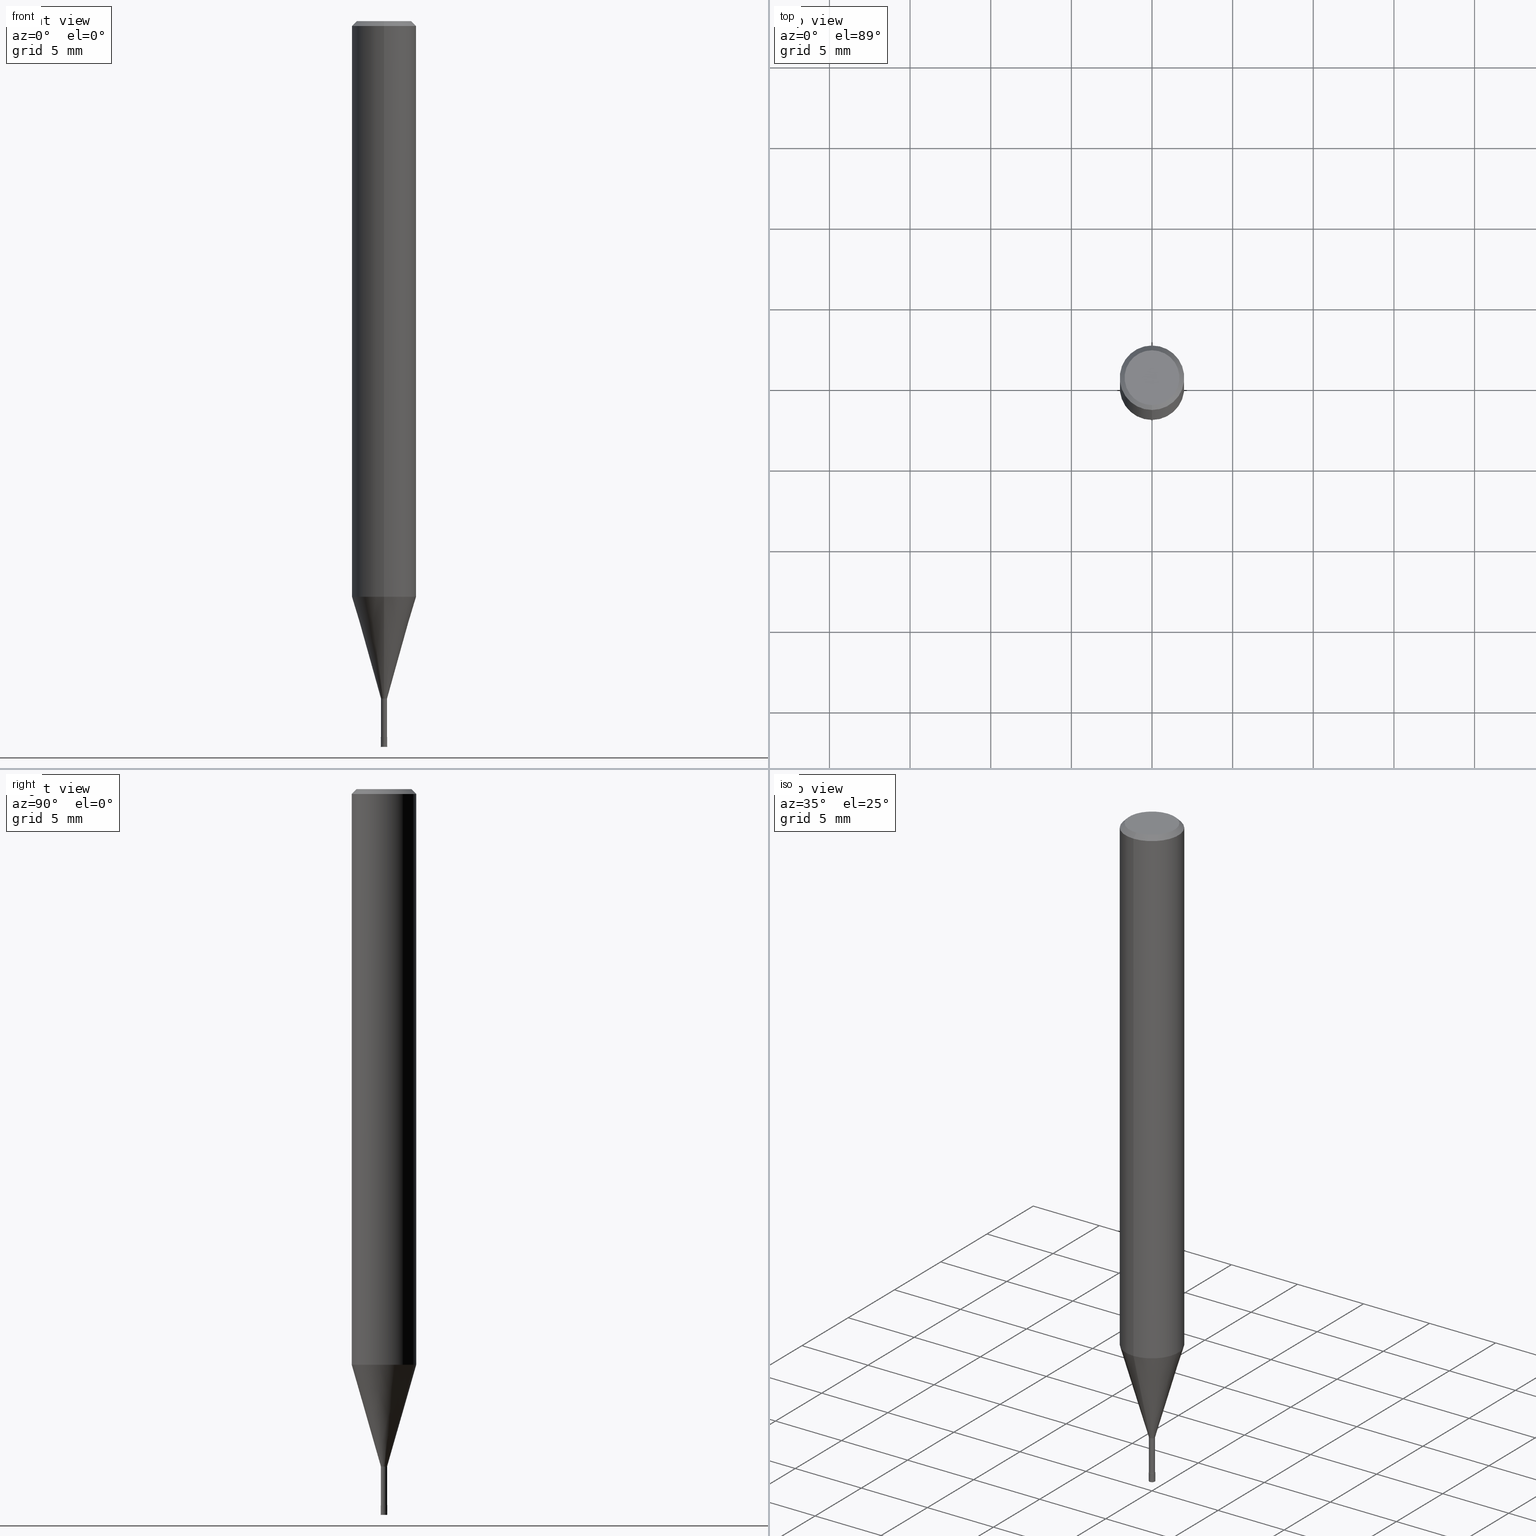
[diagram: canonical four-view strip — front | top / right | iso, engineering-drawing reading convention]
A machine part, canonical four-view strip (front | top / right | iso — engineering-drawing reading convention). The complete STEP part file that produces these views, byte-faithful:
ISO-10303-21;
HEADER;
FILE_DESCRIPTION(('no description'),'unknown implementation level');
FILE_NAME('HLS2004-030-Huellk.stp','  ',('CIMSOURCE GmbH'),('CADClick - KiM GmbH - www.kimweb.de'),'unknown preprocess','ACIS','unknown authorization');
FILE_SCHEMA(('automotive_design'));
ENDSEC;
DATA;
#1=MECHANICAL_DESIGN_GEOMETRIC_PRESENTATION_REPRESENTATION(' ',(#14,#15,#16,#17,#18,#19,#20,#21,#22,#23,#24,#25,#26,#27,#28,#29,#30,#31,#32,#33,#34,#35,#36,#37,#38,#39,#40,#41,#42,#43,#44,#45,#46,#47,#48,#49,#50,#51,#52,#53,#54,#55,#56,#57,#58,#59,#60,#61,#62,#63,#64,#65,#66,#67,#68,#69,#70,#71,#72),#10);
#2=PRODUCT_DEFINITION_CONTEXT('',#73,'design');
#3=APPLICATION_PROTOCOL_DEFINITION('INTERNATIONAL STANDARD','automotive_design',1994,#73);
#4=PRODUCT_CATEGORY_RELATIONSHIP('NONE','NONE',#74,#75);
#5=SHAPE_DEFINITION_REPRESENTATION(#76,#77);
#6=PRODUCT_DEFINITION_CONTEXT('',#78,'design');
#7=APPLICATION_PROTOCOL_DEFINITION('INTERNATIONAL STANDARD','automotive_design',1994,#78);
#8=PRODUCT_CATEGORY_RELATIONSHIP('NONE','NONE',#79,#80);
#9=SHAPE_DEFINITION_REPRESENTATION(#81,#82);
#10= (GEOMETRIC_REPRESENTATION_CONTEXT(3)GLOBAL_UNCERTAINTY_ASSIGNED_CONTEXT((#85))GLOBAL_UNIT_ASSIGNED_CONTEXT((#87,#88,#89))REPRESENTATION_CONTEXT('NONE','WORKSPACE'));
#14=STYLED_ITEM('',(#91),#92);
#15=STYLED_ITEM('',(#93),#94);
#16=STYLED_ITEM('',(#95),#96);
#17=STYLED_ITEM('',(#97),#98);
#18=STYLED_ITEM('',(#99),#100);
#19=STYLED_ITEM('',(#101),#102);
#20=STYLED_ITEM('',(#103),#104);
#21=STYLED_ITEM('',(#105),#106);
#22=STYLED_ITEM('',(#107),#108);
#23=STYLED_ITEM('',(#109),#110);
#24=STYLED_ITEM('',(#111),#112);
#25=STYLED_ITEM('',(#113),#114);
#26=STYLED_ITEM('',(#115),#116);
#27=STYLED_ITEM('',(#117),#118);
#28=STYLED_ITEM('',(#119),#120);
#29=STYLED_ITEM('',(#121),#122);
#30=STYLED_ITEM('',(#123),#124);
#31=STYLED_ITEM('',(#125),#126);
#32=STYLED_ITEM('',(#127),#128);
#33=STYLED_ITEM('',(#129),#130);
#34=STYLED_ITEM('',(#131),#132);
#35=STYLED_ITEM('',(#133),#134);
#36=STYLED_ITEM('',(#135),#136);
#37=STYLED_ITEM('',(#137),#138);
#38=STYLED_ITEM('',(#139),#140);
#39=STYLED_ITEM('',(#141),#142);
#40=STYLED_ITEM('',(#143),#144);
#41=STYLED_ITEM('',(#145),#146);
#42=STYLED_ITEM('',(#147),#148);
#43=STYLED_ITEM('',(#149),#150);
#44=STYLED_ITEM('',(#151),#152);
#45=STYLED_ITEM('',(#153),#154);
#46=STYLED_ITEM('',(#155),#156);
#47=STYLED_ITEM('',(#157),#158);
#48=STYLED_ITEM('',(#159),#160);
#49=STYLED_ITEM('',(#161),#162);
#50=STYLED_ITEM('',(#163),#164);
#51=STYLED_ITEM('',(#165),#166);
#52=STYLED_ITEM('',(#167),#168);
#53=STYLED_ITEM('',(#169),#170);
#54=STYLED_ITEM('',(#171),#172);
#55=STYLED_ITEM('',(#173),#174);
#56=STYLED_ITEM('',(#175),#176);
#57=STYLED_ITEM('',(#177),#178);
#58=STYLED_ITEM('',(#179),#180);
#59=STYLED_ITEM('',(#181),#182);
#60=STYLED_ITEM('',(#183),#184);
#61=STYLED_ITEM('',(#185),#186);
#62=STYLED_ITEM('',(#187),#188);
#63=STYLED_ITEM('',(#189),#190);
#64=STYLED_ITEM('',(#191),#192);
#65=STYLED_ITEM('',(#193),#194);
#66=STYLED_ITEM('',(#195),#196);
#67=STYLED_ITEM('',(#197),#198);
#68=STYLED_ITEM('',(#199),#200);
#69=STYLED_ITEM('',(#201),#202);
#70=STYLED_ITEM('',(#203),#204);
#71=STYLED_ITEM('',(#205),#206);
#72=STYLED_ITEM('',(#207),#208);
#73=APPLICATION_CONTEXT(' ');
#74=PRODUCT_CATEGORY('part','NONE');
#75=PRODUCT_RELATED_PRODUCT_CATEGORY('detail',' ',(#209));
#76=PRODUCT_DEFINITION_SHAPE('NONE','NONE',#210);
#77=ADVANCED_BREP_SHAPE_REPRESENTATION('1',(#186,#211),#10);
#78=APPLICATION_CONTEXT(' ');
#79=PRODUCT_CATEGORY('part','NONE');
#80=PRODUCT_RELATED_PRODUCT_CATEGORY('detail',' ',(#212));
#81=PRODUCT_DEFINITION_SHAPE('NONE','NONE',#213);
#82=ADVANCED_BREP_SHAPE_REPRESENTATION('2',(#188,#214),#10);
#85=UNCERTAINTY_MEASURE_WITH_UNIT(LENGTH_MEASURE(1.0E-006),#87,'','');
#87= (CONVERSION_BASED_UNIT('MILLIMETRE',#217)LENGTH_UNIT()NAMED_UNIT(#220));
#88= (NAMED_UNIT(#222)PLANE_ANGLE_UNIT()SI_UNIT($,.RADIAN.));
#89= (NAMED_UNIT(#222)SOLID_ANGLE_UNIT()SI_UNIT($,.STERADIAN.));
#91=PRESENTATION_STYLE_ASSIGNMENT((#228));
#92=ADVANCED_FACE('',(#229),#230,.T.);
#93=PRESENTATION_STYLE_ASSIGNMENT((#231));
#94=EDGE_CURVE('',#196,#180,#232,.T.);
#95=PRESENTATION_STYLE_ASSIGNMENT((#233));
#96=EDGE_CURVE('',#182,#138,#234,.T.);
#97=PRESENTATION_STYLE_ASSIGNMENT((#235));
#98=EDGE_CURVE('',#118,#196,#236,.T.);
#99=PRESENTATION_STYLE_ASSIGNMENT((#237));
#100=ADVANCED_FACE('',(#238),#239,.T.);
#101=PRESENTATION_STYLE_ASSIGNMENT((#240));
#102=EDGE_CURVE('',#108,#148,#241,.T.);
#103=PRESENTATION_STYLE_ASSIGNMENT((#242));
#104=VERTEX_POINT('',#243);
#105=PRESENTATION_STYLE_ASSIGNMENT((#244));
#106=EDGE_CURVE('',#116,#132,#245,.T.);
#107=PRESENTATION_STYLE_ASSIGNMENT((#246));
#108=VERTEX_POINT('',#247);
#109=PRESENTATION_STYLE_ASSIGNMENT((#248));
#110=EDGE_CURVE('',#104,#118,#249,.T.);
#111=PRESENTATION_STYLE_ASSIGNMENT((#250));
#112=EDGE_CURVE('',#134,#132,#251,.T.);
#113=PRESENTATION_STYLE_ASSIGNMENT((#252));
#114=EDGE_CURVE('',#140,#172,#253,.T.);
#115=PRESENTATION_STYLE_ASSIGNMENT((#254));
#116=VERTEX_POINT('',#255);
#117=PRESENTATION_STYLE_ASSIGNMENT((#256));
#118=VERTEX_POINT('',#257);
#119=PRESENTATION_STYLE_ASSIGNMENT((#258));
#120=VERTEX_POINT('',#259);
#121=PRESENTATION_STYLE_ASSIGNMENT((#260));
#122=EDGE_CURVE('',#202,#156,#261,.T.);
#123=PRESENTATION_STYLE_ASSIGNMENT((#262));
#124=EDGE_CURVE('',#118,#104,#263,.T.);
#125=PRESENTATION_STYLE_ASSIGNMENT((#264));
#126=EDGE_CURVE('',#120,#108,#265,.T.);
#127=PRESENTATION_STYLE_ASSIGNMENT((#266));
#128=ADVANCED_FACE('',(#267),#268,.T.);
#129=PRESENTATION_STYLE_ASSIGNMENT((#269));
#130=EDGE_CURVE('',#148,#108,#270,.T.);
#131=PRESENTATION_STYLE_ASSIGNMENT((#271));
#132=VERTEX_POINT('',#272);
#133=PRESENTATION_STYLE_ASSIGNMENT((#273));
#134=VERTEX_POINT('',#274);
#135=PRESENTATION_STYLE_ASSIGNMENT((#275));
#136=ADVANCED_FACE('',(#276),#277,.T.);
#137=PRESENTATION_STYLE_ASSIGNMENT((#278));
#138=VERTEX_POINT('',#279);
#139=PRESENTATION_STYLE_ASSIGNMENT((#280));
#140=VERTEX_POINT('',#281);
#141=PRESENTATION_STYLE_ASSIGNMENT((#282));
#142=ADVANCED_FACE('',(#283),#284,.T.);
#143=PRESENTATION_STYLE_ASSIGNMENT((#285));
#144=ADVANCED_FACE('',(#286),#287,.T.);
#145=PRESENTATION_STYLE_ASSIGNMENT((#288));
#146=ADVANCED_FACE('',(#289),#290,.T.);
#147=PRESENTATION_STYLE_ASSIGNMENT((#291));
#148=VERTEX_POINT('',#292);
#149=PRESENTATION_STYLE_ASSIGNMENT((#293));
#150=ADVANCED_FACE('',(#294),#295,.T.);
#151=PRESENTATION_STYLE_ASSIGNMENT((#296));
#152=ADVANCED_FACE('',(#297),#298,.T.);
#153=PRESENTATION_STYLE_ASSIGNMENT((#299));
#154=EDGE_CURVE('',#116,#120,#300,.T.);
#155=PRESENTATION_STYLE_ASSIGNMENT((#301));
#156=VERTEX_POINT('',#302);
#157=PRESENTATION_STYLE_ASSIGNMENT((#303));
#158=EDGE_CURVE('',#156,#202,#304,.T.);
#159=PRESENTATION_STYLE_ASSIGNMENT((#305));
#160=ADVANCED_FACE('',(#306),#307,.T.);
#161=PRESENTATION_STYLE_ASSIGNMENT((#308));
#162=EDGE_CURVE('',#148,#134,#309,.T.);
#163=PRESENTATION_STYLE_ASSIGNMENT((#310));
#164=EDGE_CURVE('',#172,#202,#311,.T.);
#165=PRESENTATION_STYLE_ASSIGNMENT((#312));
#166=EDGE_CURVE('',#132,#116,#313,.T.);
#167=PRESENTATION_STYLE_ASSIGNMENT((#314));
#168=EDGE_CURVE('',#180,#196,#315,.T.);
#169=PRESENTATION_STYLE_ASSIGNMENT((#316));
#170=ADVANCED_FACE('',(#317),#318,.T.);
#171=PRESENTATION_STYLE_ASSIGNMENT((#319));
#172=VERTEX_POINT('',#320);
#173=PRESENTATION_STYLE_ASSIGNMENT((#321));
#174=EDGE_CURVE('',#182,#172,#322,.T.);
#175=PRESENTATION_STYLE_ASSIGNMENT((#323));
#176=EDGE_CURVE('',#140,#138,#324,.T.);
#177=PRESENTATION_STYLE_ASSIGNMENT((#325));
#178=ADVANCED_FACE('',(#326),#327,.T.);
#179=PRESENTATION_STYLE_ASSIGNMENT((#328));
#180=VERTEX_POINT('',#329);
#181=PRESENTATION_STYLE_ASSIGNMENT((#330));
#182=VERTEX_POINT('',#331);
#183=PRESENTATION_STYLE_ASSIGNMENT((#332));
#184=ADVANCED_FACE('',(#333,#334),#335,.T.);
#185=PRESENTATION_STYLE_ASSIGNMENT((#336));
#186=MANIFOLD_SOLID_BREP('1',#337);
#187=PRESENTATION_STYLE_ASSIGNMENT((#338));
#188=MANIFOLD_SOLID_BREP('2',#339);
#189=PRESENTATION_STYLE_ASSIGNMENT((#340));
#190=EDGE_CURVE('',#156,#182,#341,.T.);
#191=PRESENTATION_STYLE_ASSIGNMENT((#342));
#192=EDGE_CURVE('',#120,#134,#343,.T.);
#193=PRESENTATION_STYLE_ASSIGNMENT((#344));
#194=EDGE_CURVE('',#172,#182,#345,.T.);
#195=PRESENTATION_STYLE_ASSIGNMENT((#346));
#196=VERTEX_POINT('',#347);
#197=PRESENTATION_STYLE_ASSIGNMENT((#348));
#198=EDGE_CURVE('',#180,#104,#349,.T.);
#199=PRESENTATION_STYLE_ASSIGNMENT((#350));
#200=EDGE_CURVE('',#138,#140,#351,.T.);
#201=PRESENTATION_STYLE_ASSIGNMENT((#352));
#202=VERTEX_POINT('',#353);
#203=PRESENTATION_STYLE_ASSIGNMENT((#354));
#204=EDGE_CURVE('',#134,#120,#355,.T.);
#205=PRESENTATION_STYLE_ASSIGNMENT((#356));
#206=ADVANCED_FACE('',(#357),#358,.T.);
#207=PRESENTATION_STYLE_ASSIGNMENT((#359));
#208=ADVANCED_FACE('',(#360),#361,.T.);
#209=PRODUCT('1','1','PART-1-DESC',(#362));
#210=PRODUCT_DEFINITION('NONE','NONE',#363,#2);
#211=AXIS2_PLACEMENT_3D('',#364,#365,#366);
#212=PRODUCT('2','2','PART-2-DESC',(#367));
#213=PRODUCT_DEFINITION('NONE','NONE',#368,#6);
#214=AXIS2_PLACEMENT_3D('',#369,#370,#371);
#217=LENGTH_MEASURE_WITH_UNIT(LENGTH_MEASURE(1.0),#372);
#220=DIMENSIONAL_EXPONENTS(1.0,0.0,0.0,0.0,0.0,0.0,0.0);
#222=DIMENSIONAL_EXPONENTS(0.0,0.0,0.0,0.0,0.0,0.0,0.0);
#228=SURFACE_STYLE_USAGE(.BOTH.,#373);
#229=FACE_OUTER_BOUND('',#374,.T.);
#230=CONICAL_SURFACE('',#375,1.85,0.785398163397453);
#231=CURVE_STYLE('',#376,POSITIVE_LENGTH_MEASURE(1.0E-006),#377);
#232=CIRCLE('',#378,0.2);
#233=CURVE_STYLE('',#379,POSITIVE_LENGTH_MEASURE(1.0E-006),#380);
#234=LINE('',#381,#382);
#235=CURVE_STYLE('',#383,POSITIVE_LENGTH_MEASURE(1.0E-006),#384);
#236=LINE('',#385,#386);
#237=SURFACE_STYLE_USAGE(.BOTH.,#387);
#238=FACE_OUTER_BOUND('',#388,.T.);
#239=CYLINDRICAL_SURFACE('',#389,0.18995);
#240=CURVE_STYLE('',#390,POSITIVE_LENGTH_MEASURE(1.0E-006),#391);
#241=CIRCLE('',#392,1.99995);
#242=POINT_STYLE(' ',#393,POSITIVE_LENGTH_MEASURE(1.0E-006),#394);
#243=CARTESIAN_POINT('',(2.44798810129093E-017,-0.1999,-44.4));
#244=CURVE_STYLE('',#395,POSITIVE_LENGTH_MEASURE(1.0E-006),#396);
#245=CIRCLE('',#397,0.18995);
#246=POINT_STYLE(' ',#398,POSITIVE_LENGTH_MEASURE(1.0E-006),#399);
#247=CARTESIAN_POINT('',(2.44915147732706E-016,-1.99995,-35.688));
#248=CURVE_STYLE('',#400,POSITIVE_LENGTH_MEASURE(1.0E-006),#401);
#249=CIRCLE('',#402,0.1999);
#250=CURVE_STYLE('',#403,POSITIVE_LENGTH_MEASURE(1.0E-006),#404);
#251=LINE('',#405,#406);
#252=CURVE_STYLE('',#407,POSITIVE_LENGTH_MEASURE(1.0E-006),#408);
#253=LINE('',#409,#410);
#254=POINT_STYLE(' ',#411,POSITIVE_LENGTH_MEASURE(1.0E-006),#412);
#255=CARTESIAN_POINT('',(2.32613976908561E-017,-0.18995,-44.4));
#256=POINT_STYLE(' ',#413,POSITIVE_LENGTH_MEASURE(1.0E-006),#414);
#257=CARTESIAN_POINT('',(0.0,0.1999,-44.4));
#258=POINT_STYLE(' ',#415,POSITIVE_LENGTH_MEASURE(1.0E-006),#416);
#259=CARTESIAN_POINT('',(2.3261397690856E-017,-0.18995,-42.0));
#260=CURVE_STYLE('',#417,POSITIVE_LENGTH_MEASURE(1.0E-006),#418);
#261=CIRCLE('',#419,1.7);
#262=CURVE_STYLE('',#420,POSITIVE_LENGTH_MEASURE(1.0E-006),#421);
#263=CIRCLE('',#422,0.1999);
#264=CURVE_STYLE('',#423,POSITIVE_LENGTH_MEASURE(1.0E-006),#424);
#265=LINE('',#425,#426);
#266=SURFACE_STYLE_USAGE(.BOTH.,#427);
#267=FACE_OUTER_BOUND('',#428,.T.);
#268=CYLINDRICAL_SURFACE('',#429,0.18995);
#269=CURVE_STYLE('',#430,POSITIVE_LENGTH_MEASURE(1.0E-006),#431);
#270=CIRCLE('',#432,1.99995);
#271=POINT_STYLE(' ',#433,POSITIVE_LENGTH_MEASURE(1.0E-006),#434);
#272=CARTESIAN_POINT('',(0.0,0.18995,-44.4));
#273=POINT_STYLE(' ',#435,POSITIVE_LENGTH_MEASURE(1.0E-006),#436);
#274=CARTESIAN_POINT('',(0.0,0.18995,-42.0));
#275=SURFACE_STYLE_USAGE(.BOTH.,#437);
#276=FACE_OUTER_BOUND('',#438,.T.);
#277=PLANE('',#439);
#278=POINT_STYLE(' ',#440,POSITIVE_LENGTH_MEASURE(1.0E-006),#441);
#279=CARTESIAN_POINT('',(0.0,2.0,-35.688));
#280=POINT_STYLE(' ',#442,POSITIVE_LENGTH_MEASURE(1.0E-006),#443);
#281=CARTESIAN_POINT('',(2.44921270764475E-016,-2.0,-35.688));
#282=SURFACE_STYLE_USAGE(.BOTH.,#444);
#283=FACE_OUTER_BOUND('',#445,.T.);
#284=CONICAL_SURFACE('',#446,1.85,0.785398163397453);
#285=SURFACE_STYLE_USAGE(.BOTH.,#447);
#286=FACE_OUTER_BOUND('',#448,.T.);
#287=PLANE('',#449);
#288=SURFACE_STYLE_USAGE(.BOTH.,#450);
#289=FACE_OUTER_BOUND('',#451,.T.);
#290=PLANE('',#452);
#291=POINT_STYLE(' ',#453,POSITIVE_LENGTH_MEASURE(1.0E-006),#454);
#292=CARTESIAN_POINT('',(0.0,1.99995,-35.688));
#293=SURFACE_STYLE_USAGE(.BOTH.,#455);
#294=FACE_OUTER_BOUND('',#456,.T.);
#295=CONICAL_SURFACE('',#457,1.09495,0.279261921280279);
#296=SURFACE_STYLE_USAGE(.BOTH.,#458);
#297=FACE_OUTER_BOUND('',#459,.T.);
#298=CYLINDRICAL_SURFACE('',#460,2.0);
#299=CURVE_STYLE('',#461,POSITIVE_LENGTH_MEASURE(1.0E-006),#462);
#300=LINE('',#463,#464);
#301=POINT_STYLE(' ',#465,POSITIVE_LENGTH_MEASURE(1.0E-006),#466);
#302=CARTESIAN_POINT('',(0.0,1.7,0.0));
#303=CURVE_STYLE('',#467,POSITIVE_LENGTH_MEASURE(1.0E-006),#468);
#304=CIRCLE('',#469,1.7);
#305=SURFACE_STYLE_USAGE(.BOTH.,#470);
#306=FACE_OUTER_BOUND('',#471,.T.);
#307=PLANE('',#472);
#308=CURVE_STYLE('',#473,POSITIVE_LENGTH_MEASURE(1.0E-006),#474);
#309=LINE('',#475,#476);
#310=CURVE_STYLE('',#477,POSITIVE_LENGTH_MEASURE(1.0E-006),#478);
#311=LINE('',#479,#480);
#312=CURVE_STYLE('',#481,POSITIVE_LENGTH_MEASURE(1.0E-006),#482);
#313=CIRCLE('',#483,0.18995);
#314=CURVE_STYLE('',#484,POSITIVE_LENGTH_MEASURE(1.0E-006),#485);
#315=CIRCLE('',#486,0.2);
#316=SURFACE_STYLE_USAGE(.BOTH.,#487);
#317=FACE_OUTER_BOUND('',#488,.T.);
#318=CONICAL_SURFACE('',#489,0.19995,0.000166666665123485);
#319=POINT_STYLE(' ',#490,POSITIVE_LENGTH_MEASURE(1.0E-006),#491);
#320=CARTESIAN_POINT('',(2.44921270764475E-016,-2.0,-0.299999999999997));
#321=CURVE_STYLE('',#492,POSITIVE_LENGTH_MEASURE(1.0E-006),#493);
#322=CIRCLE('',#494,2.0);
#323=CURVE_STYLE('',#495,POSITIVE_LENGTH_MEASURE(1.0E-006),#496);
#324=CIRCLE('',#497,2.0);
#325=SURFACE_STYLE_USAGE(.BOTH.,#498);
#326=FACE_OUTER_BOUND('',#499,.T.);
#327=CONICAL_SURFACE('',#500,0.19995,0.000166666665123485);
#328=POINT_STYLE(' ',#501,POSITIVE_LENGTH_MEASURE(1.0E-006),#502);
#329=CARTESIAN_POINT('',(2.44921270764476E-017,-0.2,-45.0));
#330=POINT_STYLE(' ',#503,POSITIVE_LENGTH_MEASURE(1.0E-006),#504);
#331=CARTESIAN_POINT('',(0.0,2.0,-0.299999999999997));
#332=SURFACE_STYLE_USAGE(.BOTH.,#505);
#333=FACE_OUTER_BOUND('',#506,.T.);
#334=FACE_BOUND('',#507,.T.);
#335=PLANE('',#508);
#336=SURFACE_STYLE_USAGE(.BOTH.,#509);
#337=CLOSED_SHELL('',(#100,#150,#208,#142,#184,#136,#92,#152,#206,#128,#146));
#338=SURFACE_STYLE_USAGE(.BOTH.,#510);
#339=CLOSED_SHELL('',(#170,#160,#178,#144));
#340=CURVE_STYLE('',#511,POSITIVE_LENGTH_MEASURE(1.0E-006),#512);
#341=LINE('',#513,#514);
#342=CURVE_STYLE('',#515,POSITIVE_LENGTH_MEASURE(1.0E-006),#516);
#343=CIRCLE('',#517,0.18995);
#344=CURVE_STYLE('',#518,POSITIVE_LENGTH_MEASURE(1.0E-006),#519);
#345=CIRCLE('',#520,2.0);
#346=POINT_STYLE(' ',#521,POSITIVE_LENGTH_MEASURE(1.0E-006),#522);
#347=CARTESIAN_POINT('',(0.0,0.2,-45.0));
#348=CURVE_STYLE('',#523,POSITIVE_LENGTH_MEASURE(1.0E-006),#524);
#349=LINE('',#525,#526);
#350=CURVE_STYLE('',#527,POSITIVE_LENGTH_MEASURE(1.0E-006),#528);
#351=CIRCLE('',#529,2.0);
#352=POINT_STYLE(' ',#530,POSITIVE_LENGTH_MEASURE(1.0E-006),#531);
#353=CARTESIAN_POINT('',(2.08183080149804E-016,-1.7,0.0));
#354=CURVE_STYLE('',#532,POSITIVE_LENGTH_MEASURE(1.0E-006),#533);
#355=CIRCLE('',#534,0.18995);
#356=SURFACE_STYLE_USAGE(.BOTH.,#535);
#357=FACE_OUTER_BOUND('',#536,.T.);
#358=CONICAL_SURFACE('',#537,1.09495,0.279261921280279);
#359=SURFACE_STYLE_USAGE(.BOTH.,#538);
#360=FACE_OUTER_BOUND('',#539,.T.);
#361=CYLINDRICAL_SURFACE('',#540,2.0);
#362=PRODUCT_CONTEXT('',#73,'mechanical');
#363=PRODUCT_DEFINITION_FORMATION_WITH_SPECIFIED_SOURCE(' ','NONE',#209,.NOT_KNOWN.);
#364=CARTESIAN_POINT('',(0.0,0.0,0.0));
#365=DIRECTION('',(0.0,0.0,1.0));
#366=DIRECTION('',(1.0,0.0,0.0));
#367=PRODUCT_CONTEXT('',#78,'mechanical');
#368=PRODUCT_DEFINITION_FORMATION_WITH_SPECIFIED_SOURCE(' ','NONE',#212,.NOT_KNOWN.);
#369=CARTESIAN_POINT('',(0.0,0.0,0.0));
#370=DIRECTION('',(0.0,0.0,1.0));
#371=DIRECTION('',(1.0,0.0,0.0));
#372= (NAMED_UNIT(#220)LENGTH_UNIT()SI_UNIT(.MILLI.,.METRE.));
#373=SURFACE_SIDE_STYLE('',(#542));
#374=EDGE_LOOP('',(#543,#544,#545,#546));
#375=AXIS2_PLACEMENT_3D('',#547,#548,#549);
#376=DRAUGHTING_PRE_DEFINED_CURVE_FONT('continuous');
#377=COLOUR_RGB('',0.800000011920929,0.800000011920929,0.800000011920929);
#378=AXIS2_PLACEMENT_3D('',#550,#551,#552);
#379=DRAUGHTING_PRE_DEFINED_CURVE_FONT('continuous');
#380=COLOUR_RGB('',0.498039215803146,0.498039215803146,0.498039215803146);
#381=CARTESIAN_POINT('',(-2.44921270764475E-016,2.0,-17.994));
#382=VECTOR('',#553,1.0);
#383=DRAUGHTING_PRE_DEFINED_CURVE_FONT('continuous');
#384=COLOUR_RGB('',0.800000011920929,0.800000011920929,0.800000011920929);
#385=CARTESIAN_POINT('',(-2.44860040446784E-017,0.19995,-44.7));
#386=VECTOR('',#554,1.0);
#387=SURFACE_SIDE_STYLE('',(#555));
#388=EDGE_LOOP('',(#556,#557,#558,#559));
#389=AXIS2_PLACEMENT_3D('',#560,#561,#562);
#390=DRAUGHTING_PRE_DEFINED_CURVE_FONT('continuous');
#391=COLOUR_RGB('',0.498039215803146,0.498039215803146,0.498039215803146);
#392=AXIS2_PLACEMENT_3D('',#563,#564,#565);
#393=PRE_DEFINED_MARKER('');
#394=COLOUR_RGB('',0.800000011920929,0.800000011920929,0.800000011920929);
#395=DRAUGHTING_PRE_DEFINED_CURVE_FONT('continuous');
#396=COLOUR_RGB('',0.498039215803146,0.498039215803146,0.498039215803146);
#397=AXIS2_PLACEMENT_3D('',#566,#567,#568);
#398=PRE_DEFINED_MARKER('');
#399=COLOUR_RGB('',0.498039215803146,0.498039215803146,0.498039215803146);
#400=DRAUGHTING_PRE_DEFINED_CURVE_FONT('continuous');
#401=COLOUR_RGB('',0.800000011920929,0.800000011920929,0.800000011920929);
#402=AXIS2_PLACEMENT_3D('',#569,#570,#571);
#403=DRAUGHTING_PRE_DEFINED_CURVE_FONT('continuous');
#404=COLOUR_RGB('',0.498039215803146,0.498039215803146,0.498039215803146);
#405=CARTESIAN_POINT('',(-2.32613976908561E-017,0.18995,-43.2));
#406=VECTOR('',#572,1.0);
#407=DRAUGHTING_PRE_DEFINED_CURVE_FONT('continuous');
#408=COLOUR_RGB('',0.498039215803146,0.498039215803146,0.498039215803146);
#409=CARTESIAN_POINT('',(2.44921270764475E-016,-2.0,-17.994));
#410=VECTOR('',#573,1.0);
#411=PRE_DEFINED_MARKER('');
#412=COLOUR_RGB('',0.498039215803146,0.498039215803146,0.498039215803146);
#413=PRE_DEFINED_MARKER('');
#414=COLOUR_RGB('',0.800000011920929,0.800000011920929,0.800000011920929);
#415=PRE_DEFINED_MARKER('');
#416=COLOUR_RGB('',0.498039215803146,0.498039215803146,0.498039215803146);
#417=DRAUGHTING_PRE_DEFINED_CURVE_FONT('continuous');
#418=COLOUR_RGB('',0.498039215803146,0.498039215803146,0.498039215803146);
#419=AXIS2_PLACEMENT_3D('',#574,#575,#576);
#420=DRAUGHTING_PRE_DEFINED_CURVE_FONT('continuous');
#421=COLOUR_RGB('',0.800000011920929,0.800000011920929,0.800000011920929);
#422=AXIS2_PLACEMENT_3D('',#577,#578,#579);
#423=DRAUGHTING_PRE_DEFINED_CURVE_FONT('continuous');
#424=COLOUR_RGB('',0.498039215803146,0.498039215803146,0.498039215803146);
#425=CARTESIAN_POINT('',(1.34088272711781E-016,-1.09495,-38.844));
#426=VECTOR('',#580,1.0);
#427=SURFACE_SIDE_STYLE('',(#581));
#428=EDGE_LOOP('',(#582,#583,#584,#585));
#429=AXIS2_PLACEMENT_3D('',#586,#587,#588);
#430=DRAUGHTING_PRE_DEFINED_CURVE_FONT('continuous');
#431=COLOUR_RGB('',0.498039215803146,0.498039215803146,0.498039215803146);
#432=AXIS2_PLACEMENT_3D('',#589,#590,#591);
#433=PRE_DEFINED_MARKER('');
#434=COLOUR_RGB('',0.498039215803146,0.498039215803146,0.498039215803146);
#435=PRE_DEFINED_MARKER('');
#436=COLOUR_RGB('',0.498039215803146,0.498039215803146,0.498039215803146);
#437=SURFACE_SIDE_STYLE('',(#592));
#438=EDGE_LOOP('',(#593,#594));
#439=AXIS2_PLACEMENT_3D('',#595,#596,#597);
#440=PRE_DEFINED_MARKER('');
#441=COLOUR_RGB('',0.498039215803146,0.498039215803146,0.498039215803146);
#442=PRE_DEFINED_MARKER('');
#443=COLOUR_RGB('',0.498039215803146,0.498039215803146,0.498039215803146);
#444=SURFACE_SIDE_STYLE('',(#598));
#445=EDGE_LOOP('',(#599,#600,#601,#602));
#446=AXIS2_PLACEMENT_3D('',#603,#604,#605);
#447=SURFACE_SIDE_STYLE('',(#606));
#448=EDGE_LOOP('',(#607,#608));
#449=AXIS2_PLACEMENT_3D('',#609,#610,#611);
#450=SURFACE_SIDE_STYLE('',(#612));
#451=EDGE_LOOP('',(#613,#614));
#452=AXIS2_PLACEMENT_3D('',#615,#616,#617);
#453=PRE_DEFINED_MARKER('');
#454=COLOUR_RGB('',0.498039215803146,0.498039215803146,0.498039215803146);
#455=SURFACE_SIDE_STYLE('',(#618));
#456=EDGE_LOOP('',(#619,#620,#621,#622));
#457=AXIS2_PLACEMENT_3D('',#623,#624,#625);
#458=SURFACE_SIDE_STYLE('',(#626));
#459=EDGE_LOOP('',(#627,#628,#629,#630));
#460=AXIS2_PLACEMENT_3D('',#631,#632,#633);
#461=DRAUGHTING_PRE_DEFINED_CURVE_FONT('continuous');
#462=COLOUR_RGB('',0.498039215803146,0.498039215803146,0.498039215803146);
#463=CARTESIAN_POINT('',(2.32613976908561E-017,-0.18995,-43.2));
#464=VECTOR('',#634,1.0);
#465=PRE_DEFINED_MARKER('');
#466=COLOUR_RGB('',0.498039215803146,0.498039215803146,0.498039215803146);
#467=DRAUGHTING_PRE_DEFINED_CURVE_FONT('continuous');
#468=COLOUR_RGB('',0.498039215803146,0.498039215803146,0.498039215803146);
#469=AXIS2_PLACEMENT_3D('',#635,#636,#637);
#470=SURFACE_SIDE_STYLE('',(#638));
#471=EDGE_LOOP('',(#639,#640));
#472=AXIS2_PLACEMENT_3D('',#641,#642,#643);
#473=DRAUGHTING_PRE_DEFINED_CURVE_FONT('continuous');
#474=COLOUR_RGB('',0.498039215803146,0.498039215803146,0.498039215803146);
#475=CARTESIAN_POINT('',(-1.34088272711781E-016,1.09495,-38.844));
#476=VECTOR('',#644,1.0);
#477=DRAUGHTING_PRE_DEFINED_CURVE_FONT('continuous');
#478=COLOUR_RGB('',0.498039215803146,0.498039215803146,0.498039215803146);
#479=CARTESIAN_POINT('',(2.2655217545714E-016,-1.85,-0.149999999999999));
#480=VECTOR('',#645,1.0);
#481=DRAUGHTING_PRE_DEFINED_CURVE_FONT('continuous');
#482=COLOUR_RGB('',0.498039215803146,0.498039215803146,0.498039215803146);
#483=AXIS2_PLACEMENT_3D('',#646,#647,#648);
#484=DRAUGHTING_PRE_DEFINED_CURVE_FONT('continuous');
#485=COLOUR_RGB('',0.800000011920929,0.800000011920929,0.800000011920929);
#486=AXIS2_PLACEMENT_3D('',#649,#650,#651);
#487=SURFACE_SIDE_STYLE('',(#652));
#488=EDGE_LOOP('',(#653,#654,#655,#656));
#489=AXIS2_PLACEMENT_3D('',#657,#658,#659);
#490=PRE_DEFINED_MARKER('');
#491=COLOUR_RGB('',0.498039215803146,0.498039215803146,0.498039215803146);
#492=DRAUGHTING_PRE_DEFINED_CURVE_FONT('continuous');
#493=COLOUR_RGB('',0.498039215803146,0.498039215803146,0.498039215803146);
#494=AXIS2_PLACEMENT_3D('',#660,#661,#662);
#495=DRAUGHTING_PRE_DEFINED_CURVE_FONT('continuous');
#496=COLOUR_RGB('',0.498039215803146,0.498039215803146,0.498039215803146);
#497=AXIS2_PLACEMENT_3D('',#663,#664,#665);
#498=SURFACE_SIDE_STYLE('',(#666));
#499=EDGE_LOOP('',(#667,#668,#669,#670));
#500=AXIS2_PLACEMENT_3D('',#671,#672,#673);
#501=PRE_DEFINED_MARKER('');
#502=COLOUR_RGB('',0.800000011920929,0.800000011920929,0.800000011920929);
#503=PRE_DEFINED_MARKER('');
#504=COLOUR_RGB('',0.498039215803146,0.498039215803146,0.498039215803146);
#505=SURFACE_SIDE_STYLE('',(#674));
#506=EDGE_LOOP('',(#675,#676));
#507=EDGE_LOOP('',(#677,#678));
#508=AXIS2_PLACEMENT_3D('',#679,#680,#681);
#509=SURFACE_SIDE_STYLE('',(#682));
#510=SURFACE_SIDE_STYLE('',(#683));
#511=DRAUGHTING_PRE_DEFINED_CURVE_FONT('continuous');
#512=COLOUR_RGB('',0.498039215803146,0.498039215803146,0.498039215803146);
#513=CARTESIAN_POINT('',(-2.2655217545714E-016,1.85,-0.149999999999999));
#514=VECTOR('',#684,1.0);
#515=DRAUGHTING_PRE_DEFINED_CURVE_FONT('continuous');
#516=COLOUR_RGB('',0.498039215803146,0.498039215803146,0.498039215803146);
#517=AXIS2_PLACEMENT_3D('',#685,#686,#687);
#518=DRAUGHTING_PRE_DEFINED_CURVE_FONT('continuous');
#519=COLOUR_RGB('',0.498039215803146,0.498039215803146,0.498039215803146);
#520=AXIS2_PLACEMENT_3D('',#688,#689,#690);
#521=PRE_DEFINED_MARKER('');
#522=COLOUR_RGB('',0.800000011920929,0.800000011920929,0.800000011920929);
#523=DRAUGHTING_PRE_DEFINED_CURVE_FONT('continuous');
#524=COLOUR_RGB('',0.800000011920929,0.800000011920929,0.800000011920929);
#525=CARTESIAN_POINT('',(2.44860040446784E-017,-0.19995,-44.7));
#526=VECTOR('',#691,1.0);
#527=DRAUGHTING_PRE_DEFINED_CURVE_FONT('continuous');
#528=COLOUR_RGB('',0.498039215803146,0.498039215803146,0.498039215803146);
#529=AXIS2_PLACEMENT_3D('',#692,#693,#694);
#530=PRE_DEFINED_MARKER('');
#531=COLOUR_RGB('',0.498039215803146,0.498039215803146,0.498039215803146);
#532=DRAUGHTING_PRE_DEFINED_CURVE_FONT('continuous');
#533=COLOUR_RGB('',0.498039215803146,0.498039215803146,0.498039215803146);
#534=AXIS2_PLACEMENT_3D('',#695,#696,#697);
#535=SURFACE_SIDE_STYLE('',(#698));
#536=EDGE_LOOP('',(#699,#700,#701,#702));
#537=AXIS2_PLACEMENT_3D('',#703,#704,#705);
#538=SURFACE_SIDE_STYLE('',(#706));
#539=EDGE_LOOP('',(#707,#708,#709,#710));
#540=AXIS2_PLACEMENT_3D('',#711,#712,#713);
#542=SURFACE_STYLE_FILL_AREA(#714);
#543=ORIENTED_EDGE('',*,*,#190,.T.);
#544=ORIENTED_EDGE('',*,*,#194,.F.);
#545=ORIENTED_EDGE('',*,*,#164,.T.);
#546=ORIENTED_EDGE('',*,*,#122,.T.);
#547=CARTESIAN_POINT('',(0.0,0.0,-0.149999999999999));
#548=DIRECTION('',(0.0,-0.0,-1.0));
#549=DIRECTION('',(0.0,1.0,0.0));
#550=CARTESIAN_POINT('',(0.0,0.0,-45.0));
#551=DIRECTION('',(0.0,0.0,-1.0));
#552=DIRECTION('',(0.0,1.0,0.0));
#553=DIRECTION('',(0.0,0.0,-1.0));
#554=DIRECTION('',(-2.04101056135694E-020,0.00016666666435188,-0.999999986111112));
#555=SURFACE_STYLE_FILL_AREA(#715);
#556=ORIENTED_EDGE('',*,*,#112,.F.);
#557=ORIENTED_EDGE('',*,*,#204,.T.);
#558=ORIENTED_EDGE('',*,*,#154,.F.);
#559=ORIENTED_EDGE('',*,*,#166,.F.);
#560=CARTESIAN_POINT('',(0.0,0.0,-43.2));
#561=DIRECTION('',(-0.0,-0.0,1.0));
#562=DIRECTION('',(0.0,1.0,0.0));
#563=CARTESIAN_POINT('',(0.0,0.0,-35.688));
#564=DIRECTION('',(0.0,0.0,-1.0));
#565=DIRECTION('',(0.0,1.0,0.0));
#566=CARTESIAN_POINT('',(0.0,0.0,-44.4));
#567=DIRECTION('',(0.0,0.0,-1.0));
#568=DIRECTION('',(0.0,1.0,0.0));
#569=CARTESIAN_POINT('',(0.0,0.0,-44.4));
#570=DIRECTION('',(0.0,0.0,-1.0));
#571=DIRECTION('',(0.0,1.0,0.0));
#572=DIRECTION('',(0.0,0.0,-1.0));
#573=DIRECTION('',(-0.0,-0.0,1.0));
#574=CARTESIAN_POINT('',(0.0,0.0,0.0));
#575=DIRECTION('',(0.0,0.0,-1.0));
#576=DIRECTION('',(0.0,1.0,0.0));
#577=CARTESIAN_POINT('',(0.0,0.0,-44.4));
#578=DIRECTION('',(0.0,0.0,-1.0));
#579=DIRECTION('',(0.0,1.0,0.0));
#580=DIRECTION('',(3.37558135426109E-017,-0.275646238787252,0.961259148743169));
#581=SURFACE_STYLE_FILL_AREA(#716);
#582=ORIENTED_EDGE('',*,*,#112,.T.);
#583=ORIENTED_EDGE('',*,*,#106,.F.);
#584=ORIENTED_EDGE('',*,*,#154,.T.);
#585=ORIENTED_EDGE('',*,*,#192,.T.);
#586=CARTESIAN_POINT('',(0.0,0.0,-43.2));
#587=DIRECTION('',(-0.0,-0.0,1.0));
#588=DIRECTION('',(0.0,1.0,0.0));
#589=CARTESIAN_POINT('',(0.0,0.0,-35.688));
#590=DIRECTION('',(0.0,0.0,-1.0));
#591=DIRECTION('',(0.0,1.0,0.0));
#592=SURFACE_STYLE_FILL_AREA(#717);
#593=ORIENTED_EDGE('',*,*,#158,.F.);
#594=ORIENTED_EDGE('',*,*,#122,.F.);
#595=CARTESIAN_POINT('',(0.0,0.85,0.0));
#596=DIRECTION('',(-0.0,0.0,1.0));
#597=DIRECTION('',(0.0,-1.0,0.0));
#598=SURFACE_STYLE_FILL_AREA(#718);
#599=ORIENTED_EDGE('',*,*,#190,.F.);
#600=ORIENTED_EDGE('',*,*,#158,.T.);
#601=ORIENTED_EDGE('',*,*,#164,.F.);
#602=ORIENTED_EDGE('',*,*,#174,.F.);
#603=CARTESIAN_POINT('',(0.0,0.0,-0.149999999999999));
#604=DIRECTION('',(0.0,-0.0,-1.0));
#605=DIRECTION('',(0.0,1.0,0.0));
#606=SURFACE_STYLE_FILL_AREA(#719);
#607=ORIENTED_EDGE('',*,*,#94,.T.);
#608=ORIENTED_EDGE('',*,*,#168,.T.);
#609=CARTESIAN_POINT('',(0.0,0.0975,-45.0));
#610=DIRECTION('',(0.0,0.0,-1.0));
#611=DIRECTION('',(0.0,1.0,0.0));
#612=SURFACE_STYLE_FILL_AREA(#720);
#613=ORIENTED_EDGE('',*,*,#166,.T.);
#614=ORIENTED_EDGE('',*,*,#106,.T.);
#615=CARTESIAN_POINT('',(0.0,0.094975,-44.4));
#616=DIRECTION('',(0.0,0.0,-1.0));
#617=DIRECTION('',(0.0,1.0,0.0));
#618=SURFACE_STYLE_FILL_AREA(#721);
#619=ORIENTED_EDGE('',*,*,#162,.F.);
#620=ORIENTED_EDGE('',*,*,#130,.T.);
#621=ORIENTED_EDGE('',*,*,#126,.F.);
#622=ORIENTED_EDGE('',*,*,#204,.F.);
#623=CARTESIAN_POINT('',(0.0,0.0,-38.844));
#624=DIRECTION('',(-0.0,-0.0,1.0));
#625=DIRECTION('',(0.0,1.0,0.0));
#626=SURFACE_STYLE_FILL_AREA(#722);
#627=ORIENTED_EDGE('',*,*,#96,.T.);
#628=ORIENTED_EDGE('',*,*,#176,.F.);
#629=ORIENTED_EDGE('',*,*,#114,.T.);
#630=ORIENTED_EDGE('',*,*,#194,.T.);
#631=CARTESIAN_POINT('',(0.0,0.0,-17.994));
#632=DIRECTION('',(-0.0,-0.0,1.0));
#633=DIRECTION('',(0.0,1.0,0.0));
#634=DIRECTION('',(-0.0,-0.0,1.0));
#635=CARTESIAN_POINT('',(0.0,0.0,0.0));
#636=DIRECTION('',(0.0,0.0,-1.0));
#637=DIRECTION('',(0.0,1.0,0.0));
#638=SURFACE_STYLE_FILL_AREA(#723);
#639=ORIENTED_EDGE('',*,*,#124,.F.);
#640=ORIENTED_EDGE('',*,*,#110,.F.);
#641=CARTESIAN_POINT('',(0.0,0.09995,-44.4));
#642=DIRECTION('',(-0.0,0.0,1.0));
#643=DIRECTION('',(0.0,-1.0,0.0));
#644=DIRECTION('',(3.37558135426109E-017,-0.275646238787252,-0.961259148743169));
#645=DIRECTION('',(-8.6592745707194E-017,0.707106781186551,0.707106781186544));
#646=CARTESIAN_POINT('',(0.0,0.0,-44.4));
#647=DIRECTION('',(0.0,0.0,-1.0));
#648=DIRECTION('',(0.0,1.0,0.0));
#649=CARTESIAN_POINT('',(0.0,0.0,-45.0));
#650=DIRECTION('',(0.0,0.0,-1.0));
#651=DIRECTION('',(0.0,1.0,0.0));
#652=SURFACE_STYLE_FILL_AREA(#724);
#653=ORIENTED_EDGE('',*,*,#98,.F.);
#654=ORIENTED_EDGE('',*,*,#124,.T.);
#655=ORIENTED_EDGE('',*,*,#198,.F.);
#656=ORIENTED_EDGE('',*,*,#94,.F.);
#657=CARTESIAN_POINT('',(0.0,0.0,-44.7));
#658=DIRECTION('',(0.0,-0.0,-1.0));
#659=DIRECTION('',(0.0,1.0,0.0));
#660=CARTESIAN_POINT('',(0.0,0.0,-0.299999999999997));
#661=DIRECTION('',(0.0,0.0,-1.0));
#662=DIRECTION('',(0.0,1.0,0.0));
#663=CARTESIAN_POINT('',(0.0,0.0,-35.688));
#664=DIRECTION('',(0.0,0.0,-1.0));
#665=DIRECTION('',(0.0,1.0,0.0));
#666=SURFACE_STYLE_FILL_AREA(#725);
#667=ORIENTED_EDGE('',*,*,#98,.T.);
#668=ORIENTED_EDGE('',*,*,#168,.F.);
#669=ORIENTED_EDGE('',*,*,#198,.T.);
#670=ORIENTED_EDGE('',*,*,#110,.T.);
#671=CARTESIAN_POINT('',(0.0,0.0,-44.7));
#672=DIRECTION('',(0.0,-0.0,-1.0));
#673=DIRECTION('',(0.0,1.0,0.0));
#674=SURFACE_STYLE_FILL_AREA(#726);
#675=ORIENTED_EDGE('',*,*,#200,.T.);
#676=ORIENTED_EDGE('',*,*,#176,.T.);
#677=ORIENTED_EDGE('',*,*,#130,.F.);
#678=ORIENTED_EDGE('',*,*,#102,.F.);
#679=CARTESIAN_POINT('',(0.0,1.0,-35.688));
#680=DIRECTION('',(0.0,0.0,-1.0));
#681=DIRECTION('',(0.0,1.0,0.0));
#682=SURFACE_STYLE_FILL_AREA(#727);
#683=SURFACE_STYLE_FILL_AREA(#728);
#684=DIRECTION('',(-8.6592745707194E-017,0.707106781186551,-0.707106781186544));
#685=CARTESIAN_POINT('',(0.0,0.0,-42.0));
#686=DIRECTION('',(0.0,0.0,-1.0));
#687=DIRECTION('',(0.0,1.0,0.0));
#688=CARTESIAN_POINT('',(0.0,0.0,-0.299999999999997));
#689=DIRECTION('',(0.0,0.0,-1.0));
#690=DIRECTION('',(0.0,1.0,0.0));
#691=DIRECTION('',(-2.04101056135694E-020,0.00016666666435188,0.999999986111112));
#692=CARTESIAN_POINT('',(0.0,0.0,-35.688));
#693=DIRECTION('',(0.0,0.0,-1.0));
#694=DIRECTION('',(0.0,1.0,0.0));
#695=CARTESIAN_POINT('',(0.0,0.0,-42.0));
#696=DIRECTION('',(0.0,0.0,-1.0));
#697=DIRECTION('',(0.0,1.0,0.0));
#698=SURFACE_STYLE_FILL_AREA(#729);
#699=ORIENTED_EDGE('',*,*,#162,.T.);
#700=ORIENTED_EDGE('',*,*,#192,.F.);
#701=ORIENTED_EDGE('',*,*,#126,.T.);
#702=ORIENTED_EDGE('',*,*,#102,.T.);
#703=CARTESIAN_POINT('',(0.0,0.0,-38.844));
#704=DIRECTION('',(-0.0,-0.0,1.0));
#705=DIRECTION('',(0.0,1.0,0.0));
#706=SURFACE_STYLE_FILL_AREA(#730);
#707=ORIENTED_EDGE('',*,*,#96,.F.);
#708=ORIENTED_EDGE('',*,*,#174,.T.);
#709=ORIENTED_EDGE('',*,*,#114,.F.);
#710=ORIENTED_EDGE('',*,*,#200,.F.);
#711=CARTESIAN_POINT('',(0.0,0.0,-17.994));
#712=DIRECTION('',(-0.0,-0.0,1.0));
#713=DIRECTION('',(0.0,1.0,0.0));
#714=FILL_AREA_STYLE('',(#731));
#715=FILL_AREA_STYLE('',(#732));
#716=FILL_AREA_STYLE('',(#733));
#717=FILL_AREA_STYLE('',(#734));
#718=FILL_AREA_STYLE('',(#735));
#719=FILL_AREA_STYLE('',(#736));
#720=FILL_AREA_STYLE('',(#737));
#721=FILL_AREA_STYLE('',(#738));
#722=FILL_AREA_STYLE('',(#739));
#723=FILL_AREA_STYLE('',(#740));
#724=FILL_AREA_STYLE('',(#741));
#725=FILL_AREA_STYLE('',(#742));
#726=FILL_AREA_STYLE('',(#743));
#727=FILL_AREA_STYLE('',(#744));
#728=FILL_AREA_STYLE('',(#745));
#729=FILL_AREA_STYLE('',(#746));
#730=FILL_AREA_STYLE('',(#747));
#731=FILL_AREA_STYLE_COLOUR('',#748);
#732=FILL_AREA_STYLE_COLOUR('',#749);
#733=FILL_AREA_STYLE_COLOUR('',#750);
#734=FILL_AREA_STYLE_COLOUR('',#751);
#735=FILL_AREA_STYLE_COLOUR('',#752);
#736=FILL_AREA_STYLE_COLOUR('',#753);
#737=FILL_AREA_STYLE_COLOUR('',#754);
#738=FILL_AREA_STYLE_COLOUR('',#755);
#739=FILL_AREA_STYLE_COLOUR('',#756);
#740=FILL_AREA_STYLE_COLOUR('',#757);
#741=FILL_AREA_STYLE_COLOUR('',#758);
#742=FILL_AREA_STYLE_COLOUR('',#759);
#743=FILL_AREA_STYLE_COLOUR('',#760);
#744=FILL_AREA_STYLE_COLOUR('',#761);
#745=FILL_AREA_STYLE_COLOUR('',#762);
#746=FILL_AREA_STYLE_COLOUR('',#763);
#747=FILL_AREA_STYLE_COLOUR('',#764);
#748=COLOUR_RGB('',0.498039215803146,0.498039215803146,0.498039215803146);
#749=COLOUR_RGB('',0.498039215803146,0.498039215803146,0.498039215803146);
#750=COLOUR_RGB('',0.498039215803146,0.498039215803146,0.498039215803146);
#751=COLOUR_RGB('',0.498039215803146,0.498039215803146,0.498039215803146);
#752=COLOUR_RGB('',0.498039215803146,0.498039215803146,0.498039215803146);
#753=COLOUR_RGB('',0.800000011920929,0.800000011920929,0.800000011920929);
#754=COLOUR_RGB('',0.498039215803146,0.498039215803146,0.498039215803146);
#755=COLOUR_RGB('',0.498039215803146,0.498039215803146,0.498039215803146);
#756=COLOUR_RGB('',0.498039215803146,0.498039215803146,0.498039215803146);
#757=COLOUR_RGB('',0.800000011920929,0.800000011920929,0.800000011920929);
#758=COLOUR_RGB('',0.800000011920929,0.800000011920929,0.800000011920929);
#759=COLOUR_RGB('',0.800000011920929,0.800000011920929,0.800000011920929);
#760=COLOUR_RGB('',0.498039215803146,0.498039215803146,0.498039215803146);
#761=COLOUR_RGB('',0.498039215803146,0.498039215803146,0.498039215803146);
#762=COLOUR_RGB('',0.800000011920929,0.800000011920929,0.800000011920929);
#763=COLOUR_RGB('',0.498039215803146,0.498039215803146,0.498039215803146);
#764=COLOUR_RGB('',0.498039215803146,0.498039215803146,0.498039215803146);
#765=AXIS2_PLACEMENT_3D('PCS',#766,#767,#768);
#766=CARTESIAN_POINT('',(0.0,0.0,0.0));
#767=DIRECTION('',(0.0,0.0,1.0));
#768=DIRECTION('',(1.0,0.0,0.0));
#769=AXIS2_PLACEMENT_3D('CIP',#770,#771,#772);
#770=CARTESIAN_POINT('',(0.0,0.0,-45.0));
#771=DIRECTION('',(0.0,0.0,1.0));
#772=DIRECTION('',(1.0,0.0,0.0));
#773=AXIS2_PLACEMENT_3D('CRP',#774,#775,#776);
#774=CARTESIAN_POINT('',(-0.2,0.0,-45.0));
#775=DIRECTION('',(0.0,0.0,1.0));
#776=DIRECTION('',(1.0,0.0,0.0));
#777=AXIS2_PLACEMENT_3D('MCS',#778,#779,#780);
#778=CARTESIAN_POINT('',(0.0,0.0,-35.688));
#779=DIRECTION('',(0.0,0.0,1.0));
#780=DIRECTION('',(1.0,0.0,0.0));
#781=CONSTRUCTIVE_GEOMETRY_REPRESENTATION_RELATIONSHIP('coordinate systems',$,#77,#782);
#782=CONSTRUCTIVE_GEOMETRY_REPRESENTATION('coordinate systems',(#765,#769,#773,#777),#10);
ENDSEC;
END-ISO-10303-21;
